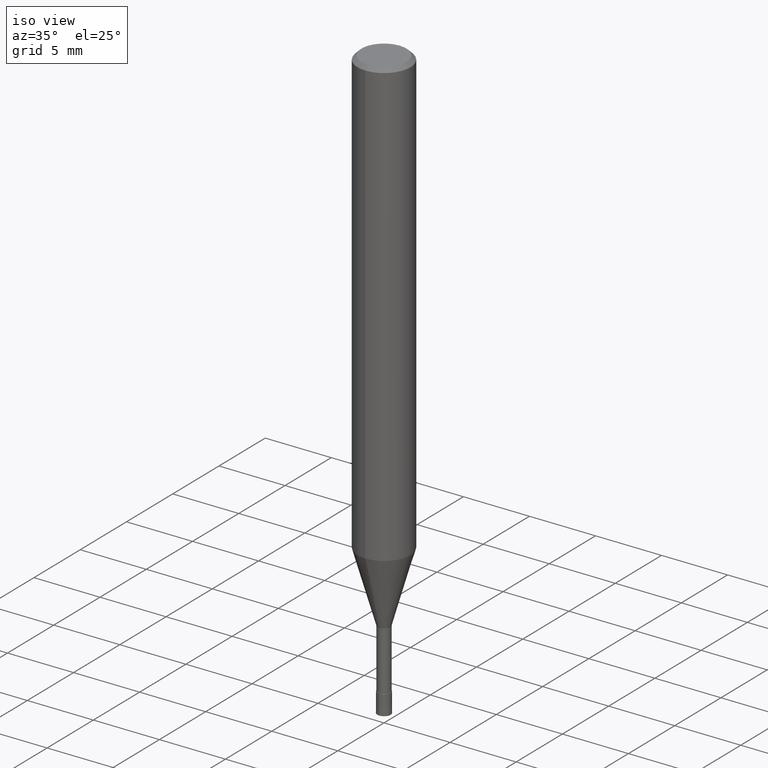
[diagram: clean part render]
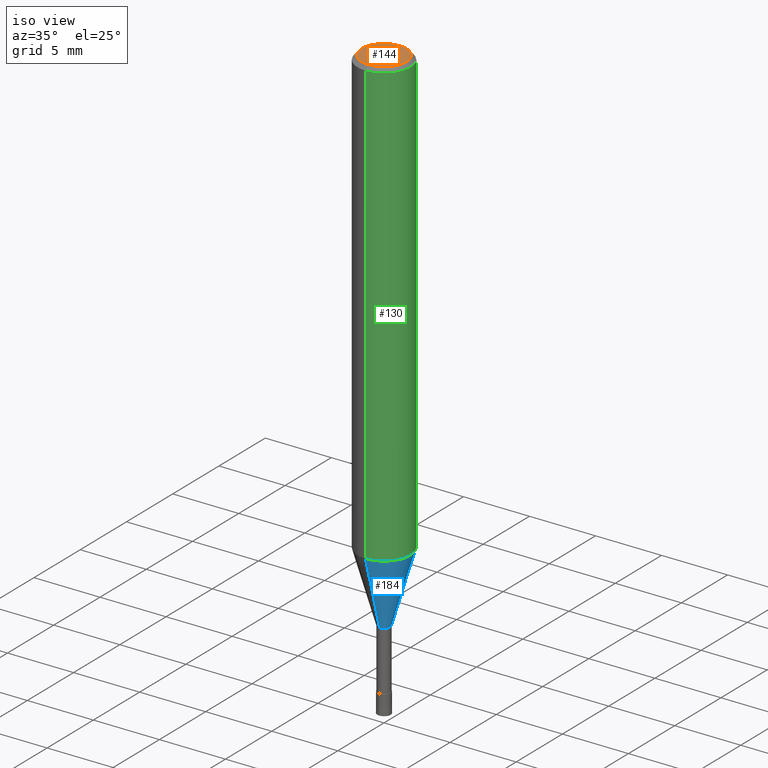
[diagram: same view with three faces highlighted in distinct colors, each labeled with its STEP entity id]
A machine part, iso view with three faces highlighted in distinct colors.
Their STEP definitions:

[orange] entity #144 — the highlighted planar face has unit normal (-0, 0, 1).
#108=VERTEX_POINT('',#245);
#144=ADVANCED_FACE('',(#285),#286,.T.);
#168=EDGE_CURVE('',#172,#108,#313,.T.);
#172=VERTEX_POINT('',#318);
#206=EDGE_CURVE('',#108,#172,#359,.T.);
#245=CARTESIAN_POINT('',(0.0,1.7,0.0));
#285=FACE_OUTER_BOUND('',#446,.T.);
#286=PLANE('',#447);
#313=CIRCLE('',#482,1.7);
#318=CARTESIAN_POINT('',(2.08183080149804E-016,-1.7,0.0));
#359=CIRCLE('',#537,1.7);
#446=EDGE_LOOP('',(#606,#607));
#447=AXIS2_PLACEMENT_3D('',#608,#609,#610);
#482=AXIS2_PLACEMENT_3D('',#639,#640,#641);
#537=AXIS2_PLACEMENT_3D('',#708,#709,#710);
#606=ORIENTED_EDGE('',*,*,#206,.F.);
#607=ORIENTED_EDGE('',*,*,#168,.F.);
#608=CARTESIAN_POINT('',(0.0,0.85,0.0));
#609=DIRECTION('',(-0.0,0.0,1.0));
#610=DIRECTION('',(0.0,-1.0,0.0));
#639=CARTESIAN_POINT('',(0.0,0.0,0.0));
#640=DIRECTION('',(0.0,0.0,-1.0));
#641=DIRECTION('',(0.0,1.0,0.0));
#708=CARTESIAN_POINT('',(0.0,0.0,0.0));
#709=DIRECTION('',(0.0,0.0,-1.0));
#710=DIRECTION('',(0.0,1.0,0.0));

[blue] entity #184 — the highlighted conical surface has half-angle 16.001 deg.
#92=VERTEX_POINT('',#229);
#98=VERTEX_POINT('',#235);
#102=EDGE_CURVE('',#98,#92,#239,.T.);
#128=EDGE_CURVE('',#180,#92,#267,.T.);
#148=VERTEX_POINT('',#290);
#160=EDGE_CURVE('',#180,#148,#305,.T.);
#180=VERTEX_POINT('',#327);
#184=ADVANCED_FACE('',(#332),#333,.T.);
#208=EDGE_CURVE('',#148,#98,#361,.T.);
#229=CARTESIAN_POINT('',(2.44915147732706E-016,-1.99995,-33.682));
#235=CARTESIAN_POINT('',(5.81626787747938E-017,-0.47495,-39.0));
#239=LINE('',#388,#389);
#267=CIRCLE('',#425,1.99995);
#290=CARTESIAN_POINT('',(0.0,0.47495,-39.0));
#305=LINE('',#470,#471);
#327=CARTESIAN_POINT('',(0.0,1.99995,-33.682));
#332=FACE_OUTER_BOUND('',#504,.T.);
#333=CONICAL_SURFACE('',#505,1.23745,0.279267977304115);
#361=CIRCLE('',#540,0.47495);
#388=CARTESIAN_POINT('',(1.5153891325375E-016,-1.23745,-36.341));
#389=VECTOR('',#551,1.0);
#425=AXIS2_PLACEMENT_3D('',#578,#579,#580);
#470=CARTESIAN_POINT('',(-1.5153891325375E-016,1.23745,-36.341));
#471=VECTOR('',#637,1.0);
#504=EDGE_LOOP('',(#669,#670,#671,#672));
#505=AXIS2_PLACEMENT_3D('',#673,#674,#675);
#540=AXIS2_PLACEMENT_3D('',#711,#712,#713);
#551=DIRECTION('',(3.37565264353533E-017,-0.275652060190515,0.961257479405349));
#578=CARTESIAN_POINT('',(0.0,0.0,-33.682));
#579=DIRECTION('',(0.0,0.0,-1.0));
#580=DIRECTION('',(0.0,1.0,0.0));
#637=DIRECTION('',(3.37565264353533E-017,-0.275652060190515,-0.961257479405349));
#669=ORIENTED_EDGE('',*,*,#160,.F.);
#670=ORIENTED_EDGE('',*,*,#128,.T.);
#671=ORIENTED_EDGE('',*,*,#102,.F.);
#672=ORIENTED_EDGE('',*,*,#208,.F.);
#673=CARTESIAN_POINT('',(0.0,0.0,-36.341));
#674=DIRECTION('',(-0.0,-0.0,1.0));
#675=DIRECTION('',(0.0,1.0,0.0));
#711=CARTESIAN_POINT('',(0.0,0.0,-39.0));
#712=DIRECTION('',(0.0,0.0,-1.0));
#713=DIRECTION('',(0.0,1.0,0.0));

[green] entity #130 — the highlighted cylindrical surface (edge-blend (fillet) strip) has radius 2 mm, axis along (-0, -0, 1).
#106=VERTEX_POINT('',#243);
#116=EDGE_CURVE('',#106,#204,#253,.T.);
#122=VERTEX_POINT('',#261);
#124=EDGE_CURVE('',#122,#106,#263,.T.);
#130=ADVANCED_FACE('',(#269),#270,.T.);
#186=EDGE_CURVE('',#196,#122,#335,.T.);
#192=EDGE_CURVE('',#196,#204,#342,.T.);
#196=VERTEX_POINT('',#346);
#204=VERTEX_POINT('',#357);
#243=CARTESIAN_POINT('',(2.44921270764475E-016,-2.0,-33.682));
#253=LINE('',#409,#410);
#261=CARTESIAN_POINT('',(0.0,2.0,-33.682));
#263=CIRCLE('',#421,2.0);
#269=FACE_OUTER_BOUND('',#427,.T.);
#270=CYLINDRICAL_SURFACE('',#428,2.0);
#335=LINE('',#508,#509);
#342=CIRCLE('',#517,2.0);
#346=CARTESIAN_POINT('',(0.0,2.0,-0.299999999999997));
#357=CARTESIAN_POINT('',(2.44921270764475E-016,-2.0,-0.299999999999997));
#409=CARTESIAN_POINT('',(2.44921270764475E-016,-2.0,-16.991));
#410=VECTOR('',#557,1.0);
#421=AXIS2_PLACEMENT_3D('',#574,#575,#576);
#427=EDGE_LOOP('',(#582,#583,#584,#585));
#428=AXIS2_PLACEMENT_3D('',#586,#587,#588);
#508=CARTESIAN_POINT('',(-2.44921270764475E-016,2.0,-16.991));
#509=VECTOR('',#676,1.0);
#517=AXIS2_PLACEMENT_3D('',#685,#686,#687);
#557=DIRECTION('',(-0.0,-0.0,1.0));
#574=CARTESIAN_POINT('',(0.0,0.0,-33.682));
#575=DIRECTION('',(0.0,0.0,-1.0));
#576=DIRECTION('',(0.0,1.0,0.0));
#582=ORIENTED_EDGE('',*,*,#186,.F.);
#583=ORIENTED_EDGE('',*,*,#192,.T.);
#584=ORIENTED_EDGE('',*,*,#116,.F.);
#585=ORIENTED_EDGE('',*,*,#124,.F.);
#586=CARTESIAN_POINT('',(0.0,0.0,-16.991));
#587=DIRECTION('',(-0.0,-0.0,1.0));
#588=DIRECTION('',(0.0,1.0,0.0));
#676=DIRECTION('',(0.0,0.0,-1.0));
#685=CARTESIAN_POINT('',(0.0,0.0,-0.299999999999997));
#686=DIRECTION('',(0.0,0.0,-1.0));
#687=DIRECTION('',(0.0,1.0,0.0));